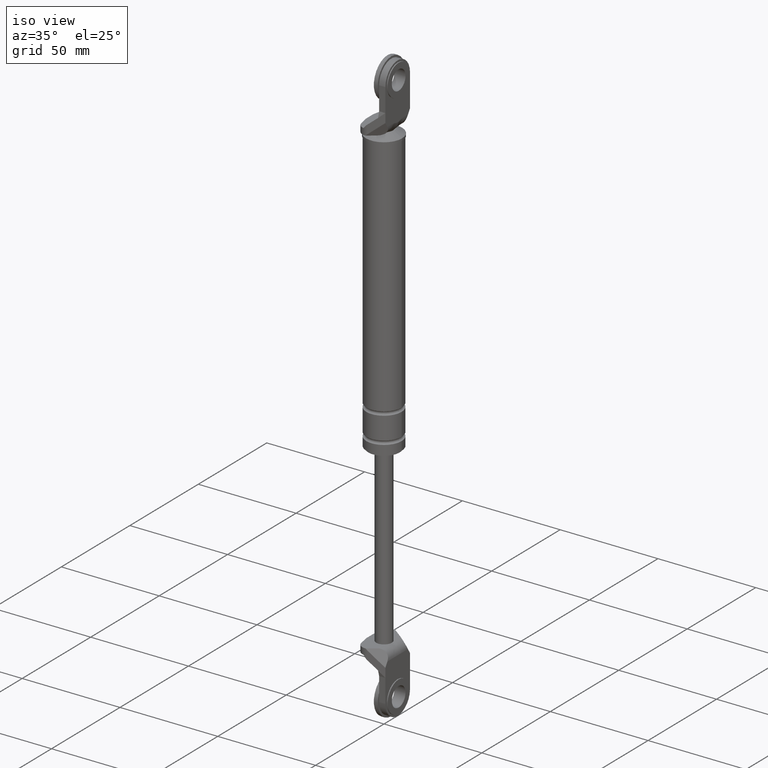
[diagram: clean part render]
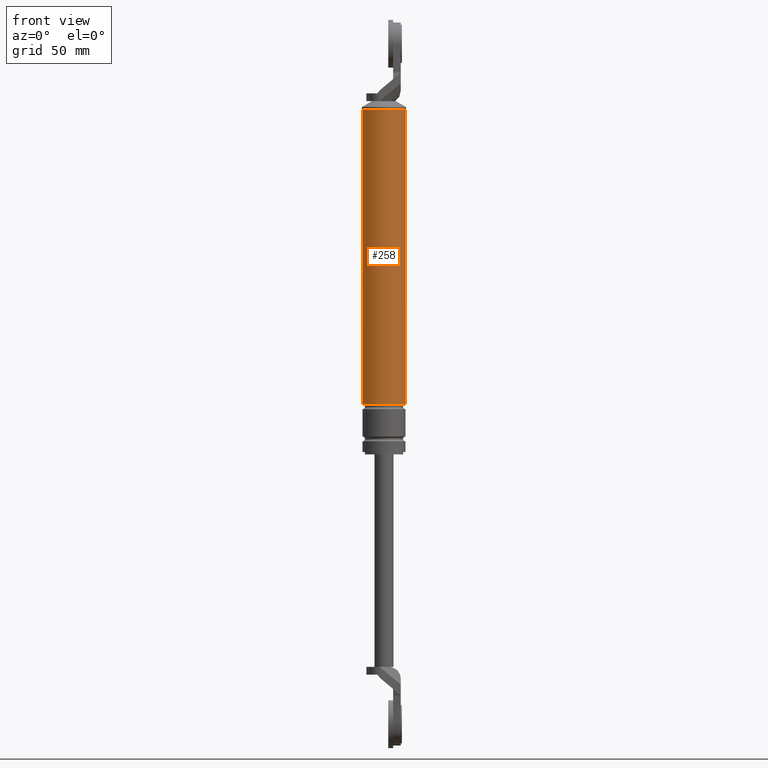
[diagram: tour spotlight — one face highlighted and labeled with its STEP entity id]
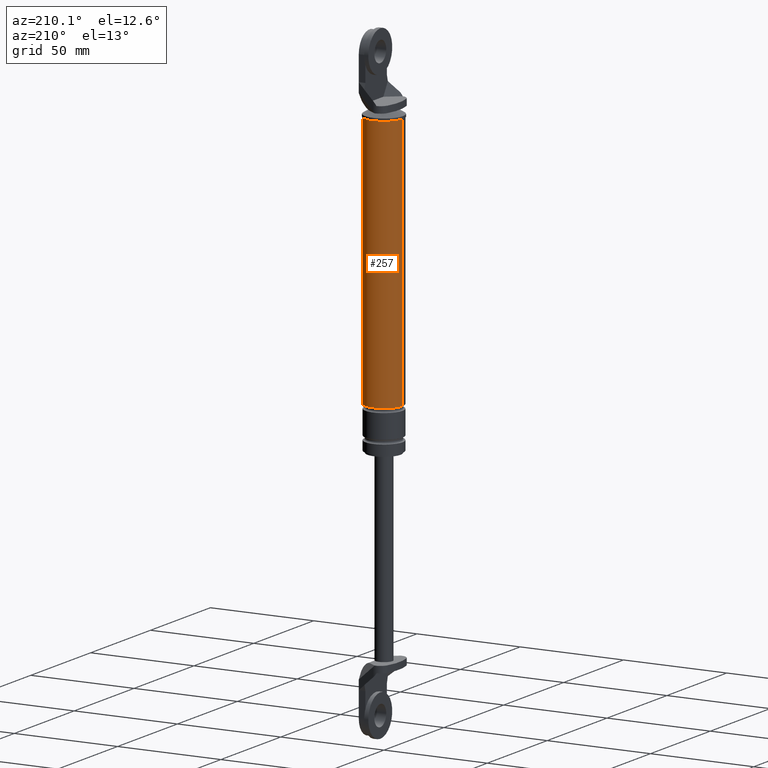
[diagram: tour spotlight — one face highlighted and labeled with its STEP entity id]
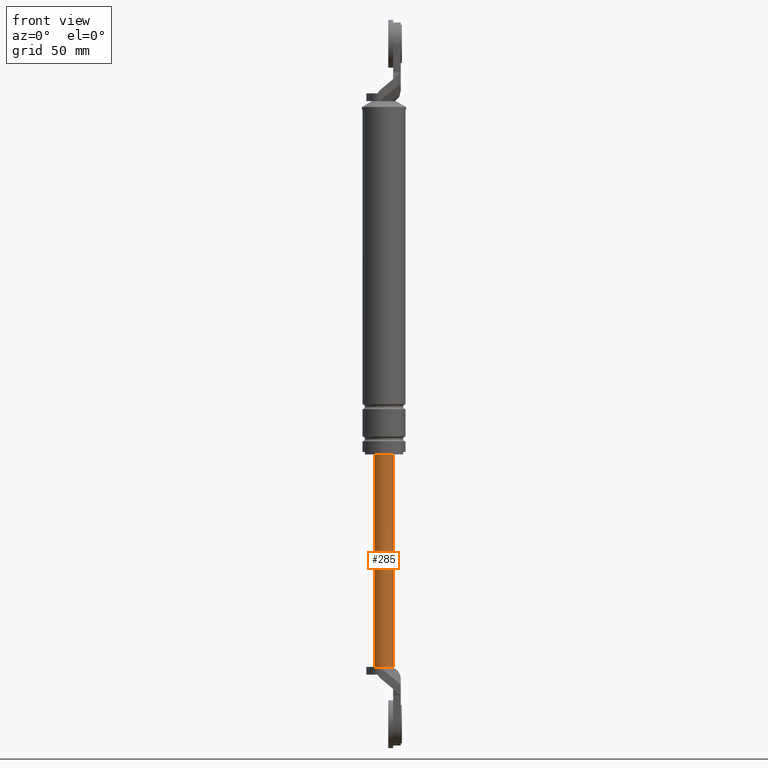
[diagram: tour spotlight — one face highlighted and labeled with its STEP entity id]
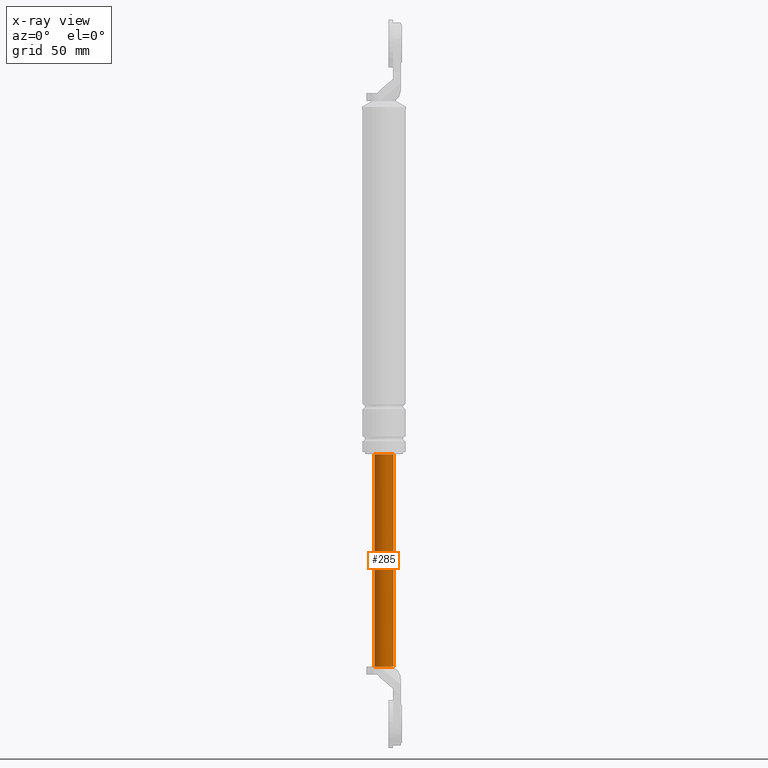
[diagram: x-ray of the same camera — body ghosted, this tour face saturated]
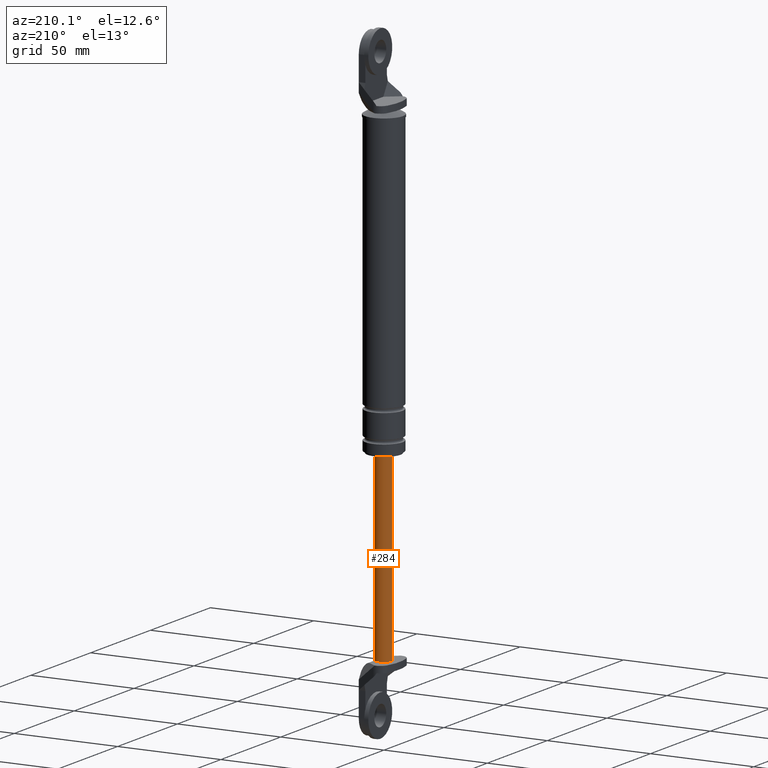
[diagram: tour spotlight — one face highlighted and labeled with its STEP entity id]
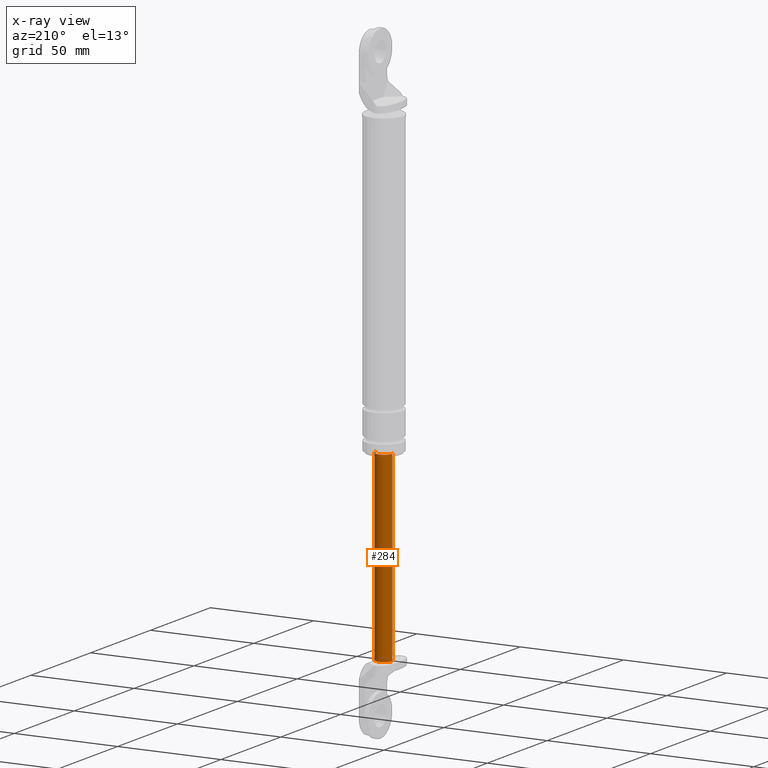
[diagram: x-ray of the same camera — body ghosted, this tour face saturated]
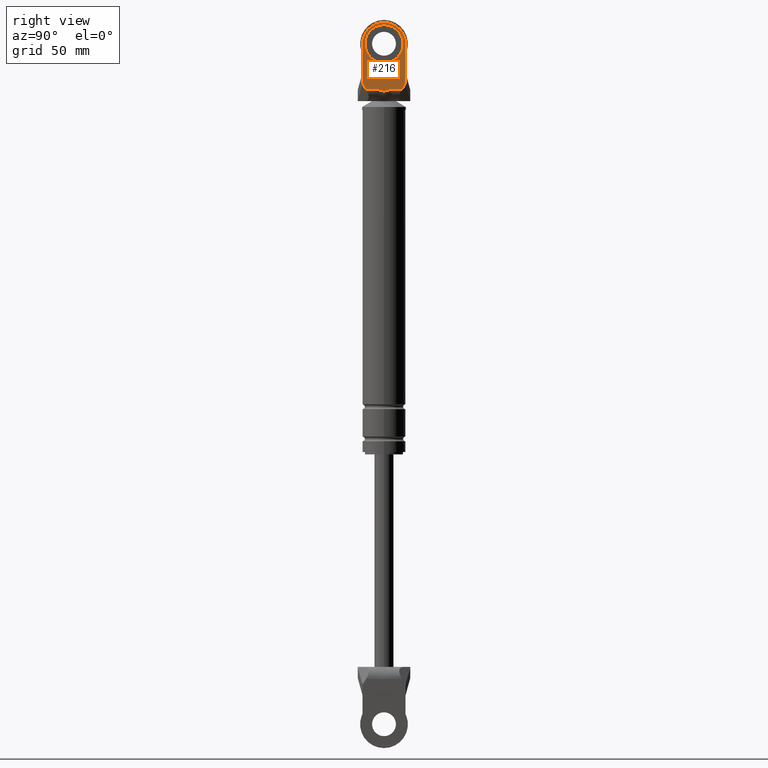
[diagram: tour spotlight — one face highlighted and labeled with its STEP entity id]
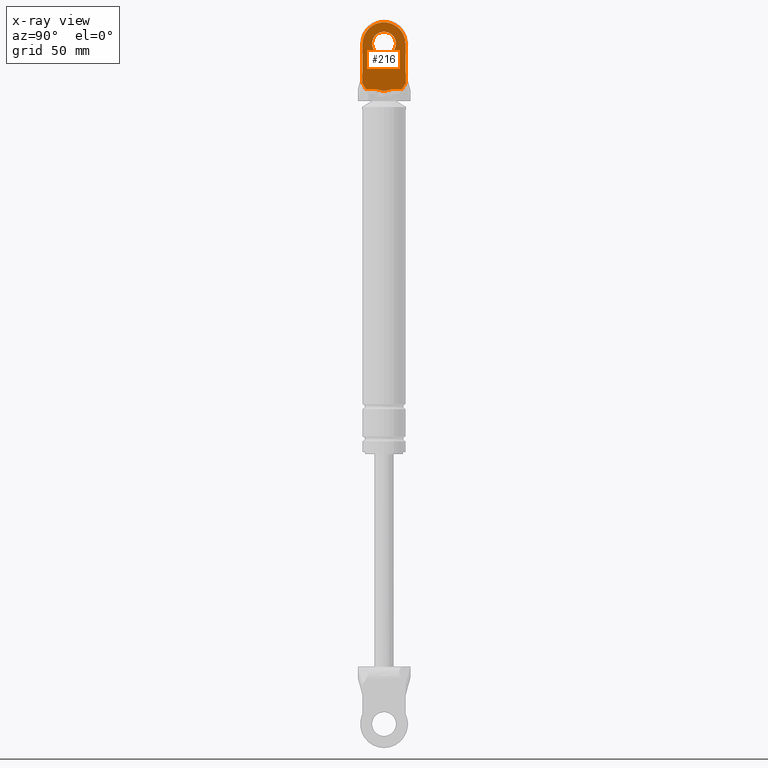
[diagram: x-ray of the same camera — body ghosted, this tour face saturated]
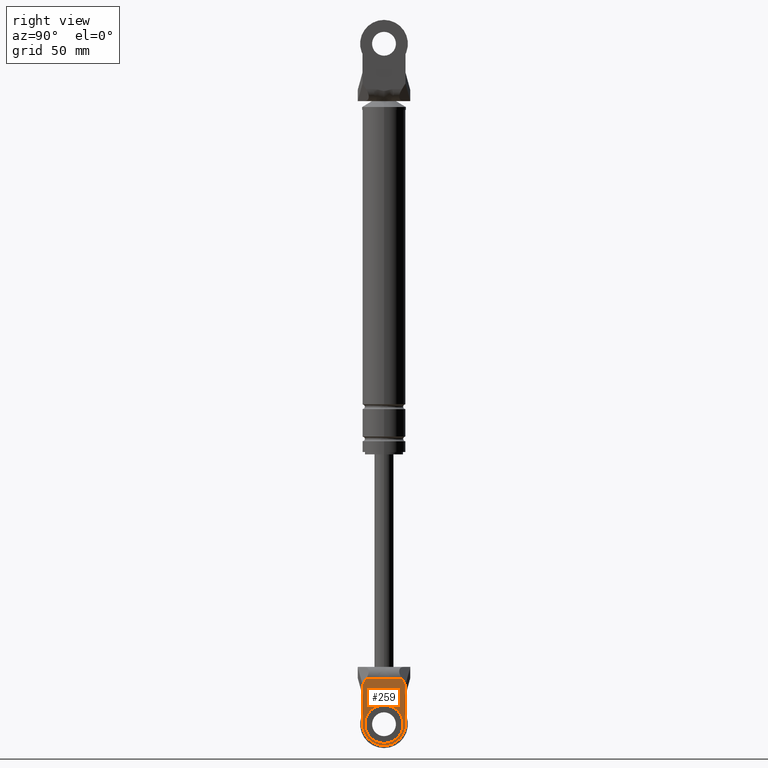
[diagram: tour spotlight — one face highlighted and labeled with its STEP entity id]
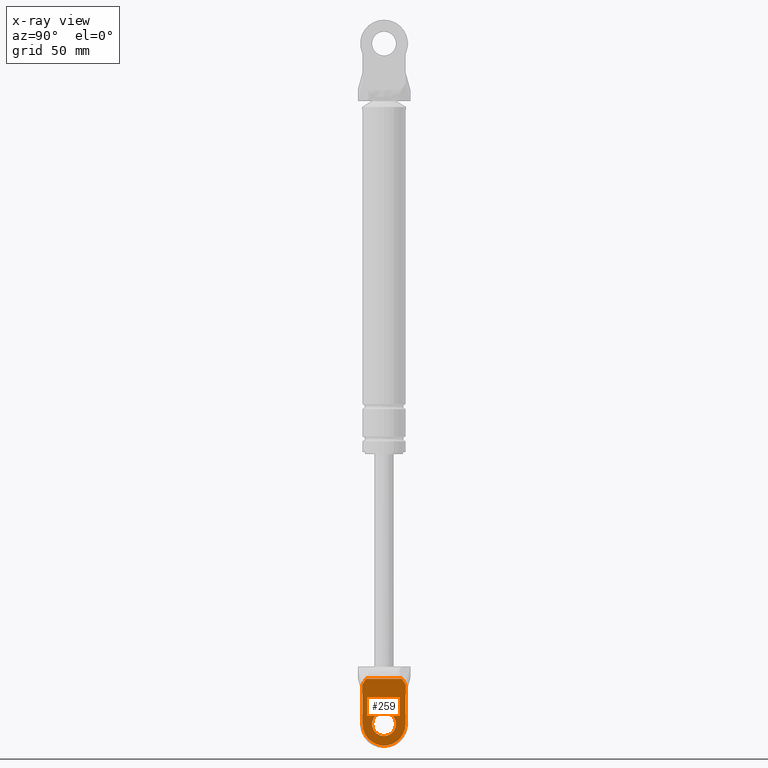
[diagram: x-ray of the same camera — body ghosted, this tour face saturated]
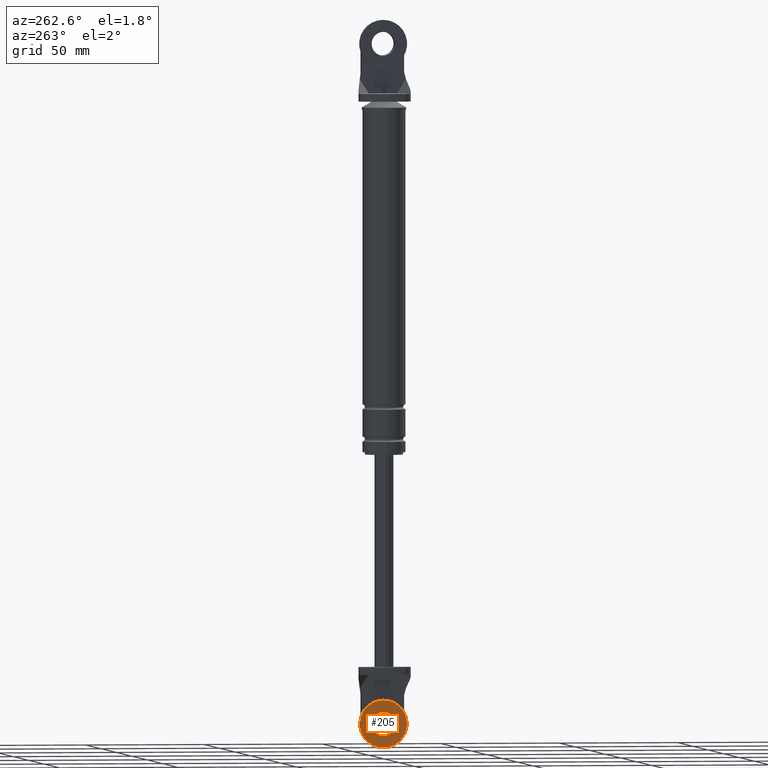
[diagram: tour spotlight — one face highlighted and labeled with its STEP entity id]
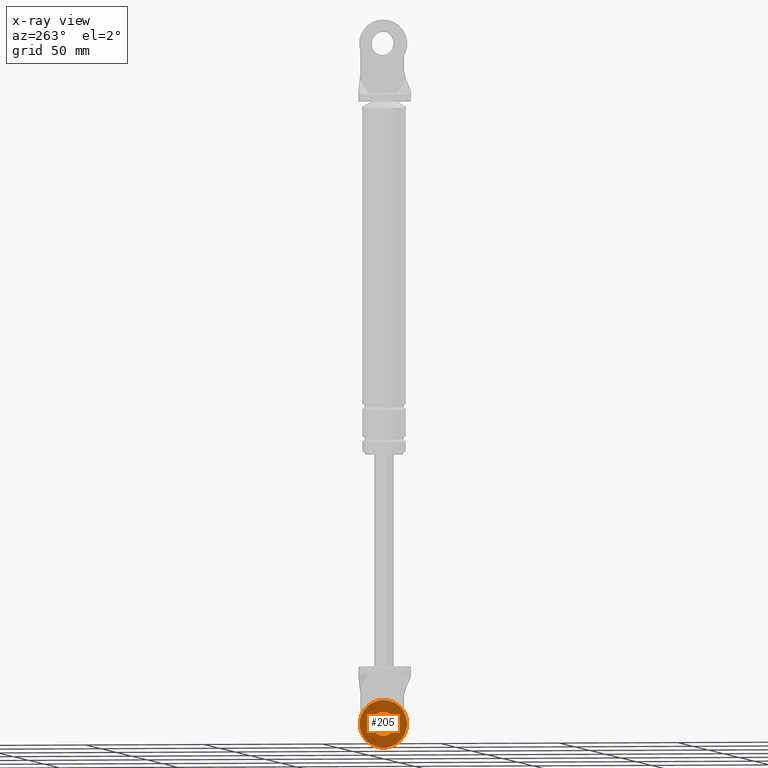
[diagram: x-ray of the same camera — body ghosted, this tour face saturated]
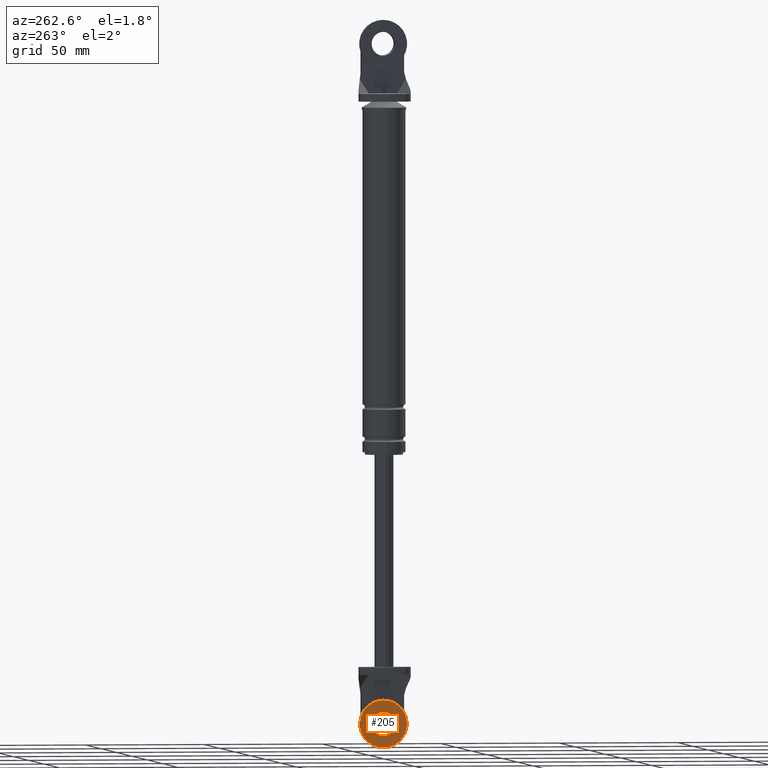
[diagram: tour spotlight — one face highlighted and labeled with its STEP entity id]
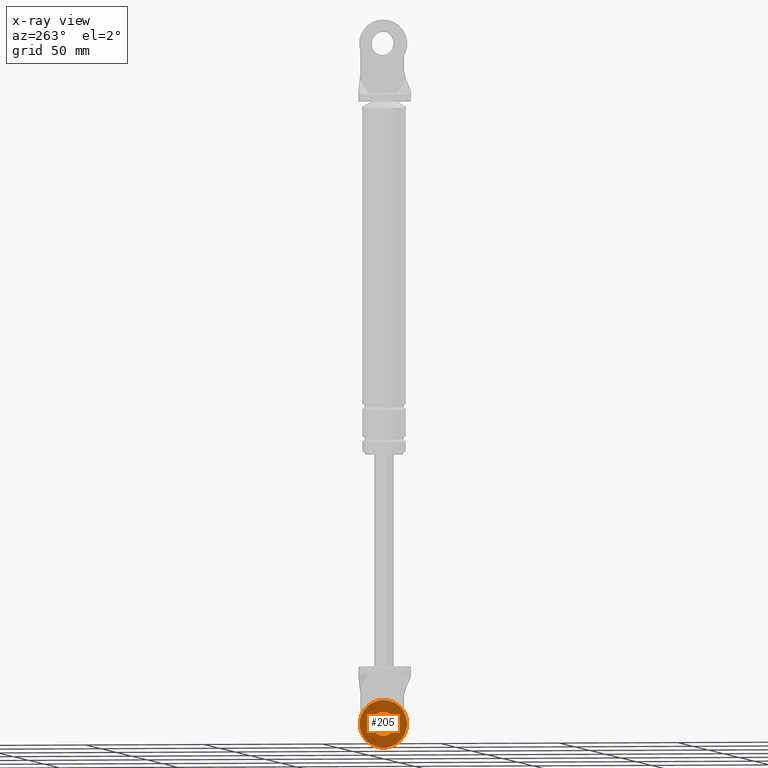
[diagram: x-ray of the same camera — body ghosted, this tour face saturated]
A machine part: a face-by-face anatomy tour. The part has 94 B-rep faces; the first image is the clean iso view, then the 8 largest visible faces are spotlighted one at a time (largest first), each with its STEP entity span.

Face 1 — front view, entity #258. In plain terms, the highlighted cylindrical surface (edge-blend (fillet) strip) has radius 9 mm, axis along (0, 0, 1).
Definition (entity closure, byte-faithful):
#258=ADVANCED_FACE('',(#835),#834,.T.);
#834=CYLINDRICAL_SURFACE('',#1573,9.00000000000E+000);
#835=FACE_OUTER_BOUND('',#1574,.T.);
#1570=CARTESIAN_POINT('',(0.00000000000E+000,3.58204186421E-014,0.00000000000E+000));
#1571=DIRECTION('',(-0.00000000000E+000,-0.00000000000E+000,1.00000000000E+000));
#1572=DIRECTION('',(1.00000000000E+000,0.00000000000E+000,0.00000000000E+000));
#1573=AXIS2_PLACEMENT_3D('',#1570,#1571,#1572);
#1574=EDGE_LOOP('',(#2012,#2013,#2014,#2015));
#2012=ORIENTED_EDGE('',*,*,#2267,.F.);
#2013=ORIENTED_EDGE('',*,*,#2283,.T.);
#2014=ORIENTED_EDGE('',*,*,#2215,.T.);
#2015=ORIENTED_EDGE('',*,*,#2284,.F.);
#2215=EDGE_CURVE('',#2743,#2744,#2745,.T.);
#2267=EDGE_CURVE('',#3086,#3087,#3088,.T.);
#2283=EDGE_CURVE('',#3086,#2743,#3186,.T.);
#2284=EDGE_CURVE('',#3087,#2744,#3192,.T.);
#2743=VERTEX_POINT('',#3920);
#2744=VERTEX_POINT('',#3921);
#2745=CIRCLE('',#3925,9.00000000000E+000);
#3086=VERTEX_POINT('',#4127);
#3087=VERTEX_POINT('',#4128);
#3088=CIRCLE('',#4132,9.00000000000E+000);
#3186=(BOUNDED_CURVE() B_SPLINE_CURVE(1,(#4183,#4184),.UNSPECIFIED.,.F.,.F.) B_SPLINE_CURVE_WITH_KNOTS((2,2),(6.97836706411E-002,9.30216329116E-001),.UNSPECIFIED.) CURVE() GEOMETRIC_REPRESENTATION_ITEM() RATIONAL_B_SPLINE_CURVE((1.00000000000E+000,1.00000000000E+000)) REPRESENTATION_ITEM('') );
#3192=(BOUNDED_CURVE() B_SPLINE_CURVE(1,(#4185,#4186),.UNSPECIFIED.,.F.,.F.) B_SPLINE_CURVE_WITH_KNOTS((2,2),(6.97836706211E-002,9.30216329379E-001),.UNSPECIFIED.) CURVE() GEOMETRIC_REPRESENTATION_ITEM() RATIONAL_B_SPLINE_CURVE((7.50000000000E-001,7.50000000000E-001)) REPRESENTATION_ITEM('') );
#3920=CARTESIAN_POINT('',(9.00000000000E+000,3.61192557345E-014,8.52999850000E+001));
#3921=CARTESIAN_POINT('',(-9.00000000000E+000,3.58204186421E-014,8.52999850000E+001));
#3922=CARTESIAN_POINT('',(0.00000000000E+000,3.58204186421E-014,8.52999850000E+001));
#3923=DIRECTION('',(-0.00000000000E+000,0.00000000000E+000,-1.00000000000E+000));
#3924=DIRECTION('',(-1.00000000000E+000,-1.22460635382E-016,0.00000000000E+000));
#3925=AXIS2_PLACEMENT_3D('',#3922,#3923,#3924);
#4127=CARTESIAN_POINT('',(9.00000000000E+000,3.61192557345E-014,-3.80000150000E+001));
#4128=CARTESIAN_POINT('',(-9.00000000000E+000,3.58204186421E-014,-3.80000150000E+001));
#4129=CARTESIAN_POINT('',(0.00000000000E+000,3.58204186421E-014,-3.80000150000E+001));
#4130=DIRECTION('',(-0.00000000000E+000,0.00000000000E+000,-1.00000000000E+000));
#4131=DIRECTION('',(-1.00000000000E+000,-1.22460635382E-016,0.00000000000E+000));
#4132=AXIS2_PLACEMENT_3D('',#4129,#4130,#4131);
#4183=CARTESIAN_POINT('',(9.00000000000E+000,3.58204186421E-014,-3.80000149971E+001));
#4184=CARTESIAN_POINT('',(9.00000000000E+000,3.58204186421E-014,8.52999849623E+001));
#4185=CARTESIAN_POINT('',(-9.00000000000E+000,3.52310773148E-014,-3.80000150000E+001));
#4186=CARTESIAN_POINT('',(-9.00000000000E+000,3.52310773148E-014,8.52999850000E+001));

Face 2 — auxiliary view, entity #257. In plain terms, the highlighted cylindrical surface (edge-blend (fillet) strip) has radius 9 mm, axis along (0, 0, 1).
Definition (entity closure, byte-faithful):
#257=ADVANCED_FACE('',(#825),#824,.T.);
#824=CYLINDRICAL_SURFACE('',#1568,9.00000000000E+000);
#825=FACE_OUTER_BOUND('',#1569,.T.);
#1565=CARTESIAN_POINT('',(0.00000000000E+000,3.58204186421E-014,0.00000000000E+000));
#1566=DIRECTION('',(-0.00000000000E+000,-0.00000000000E+000,1.00000000000E+000));
#1567=DIRECTION('',(1.00000000000E+000,0.00000000000E+000,0.00000000000E+000));
#1568=AXIS2_PLACEMENT_3D('',#1565,#1566,#1567);
#1569=EDGE_LOOP('',(#2008,#2009,#2010,#2011));
#2008=ORIENTED_EDGE('',*,*,#2216,.T.);
#2009=ORIENTED_EDGE('',*,*,#2283,.F.);
#2010=ORIENTED_EDGE('',*,*,#2270,.F.);
#2011=ORIENTED_EDGE('',*,*,#2284,.T.);
#2216=EDGE_CURVE('',#2744,#2743,#2751,.T.);
#2270=EDGE_CURVE('',#3087,#3086,#3106,.T.);
#2283=EDGE_CURVE('',#3086,#2743,#3186,.T.);
#2284=EDGE_CURVE('',#3087,#2744,#3192,.T.);
#2743=VERTEX_POINT('',#3920);
#2744=VERTEX_POINT('',#3921);
#2751=CIRCLE('',#3929,9.00000000000E+000);
#3086=VERTEX_POINT('',#4127);
#3087=VERTEX_POINT('',#4128);
#3106=CIRCLE('',#4146,9.00000000000E+000);
#3186=(BOUNDED_CURVE() B_SPLINE_CURVE(1,(#4183,#4184),.UNSPECIFIED.,.F.,.F.) B_SPLINE_CURVE_WITH_KNOTS((2,2),(6.97836706411E-002,9.30216329116E-001),.UNSPECIFIED.) CURVE() GEOMETRIC_REPRESENTATION_ITEM() RATIONAL_B_SPLINE_CURVE((1.00000000000E+000,1.00000000000E+000)) REPRESENTATION_ITEM('') );
#3192=(BOUNDED_CURVE() B_SPLINE_CURVE(1,(#4185,#4186),.UNSPECIFIED.,.F.,.F.) B_SPLINE_CURVE_WITH_KNOTS((2,2),(6.97836706211E-002,9.30216329379E-001),.UNSPECIFIED.) CURVE() GEOMETRIC_REPRESENTATION_ITEM() RATIONAL_B_SPLINE_CURVE((7.50000000000E-001,7.50000000000E-001)) REPRESENTATION_ITEM('') );
#3920=CARTESIAN_POINT('',(9.00000000000E+000,3.61192557345E-014,8.52999850000E+001));
#3921=CARTESIAN_POINT('',(-9.00000000000E+000,3.58204186421E-014,8.52999850000E+001));
#3926=CARTESIAN_POINT('',(0.00000000000E+000,3.58204186421E-014,8.52999850000E+001));
#3927=DIRECTION('',(-0.00000000000E+000,0.00000000000E+000,-1.00000000000E+000));
#3928=DIRECTION('',(-1.00000000000E+000,-1.22460635382E-016,0.00000000000E+000));
#3929=AXIS2_PLACEMENT_3D('',#3926,#3927,#3928);
#4127=CARTESIAN_POINT('',(9.00000000000E+000,3.61192557345E-014,-3.80000150000E+001));
#4128=CARTESIAN_POINT('',(-9.00000000000E+000,3.58204186421E-014,-3.80000150000E+001));
#4143=CARTESIAN_POINT('',(0.00000000000E+000,3.58204186421E-014,-3.80000150000E+001));
#4144=DIRECTION('',(-0.00000000000E+000,0.00000000000E+000,-1.00000000000E+000));
#4145=DIRECTION('',(-1.00000000000E+000,-1.22460635382E-016,0.00000000000E+000));
#4146=AXIS2_PLACEMENT_3D('',#4143,#4144,#4145);
#4183=CARTESIAN_POINT('',(9.00000000000E+000,3.58204186421E-014,-3.80000149971E+001));
#4184=CARTESIAN_POINT('',(9.00000000000E+000,3.58204186421E-014,8.52999849623E+001));
#4185=CARTESIAN_POINT('',(-9.00000000000E+000,3.52310773148E-014,-3.80000150000E+001));
#4186=CARTESIAN_POINT('',(-9.00000000000E+000,3.52310773148E-014,8.52999850000E+001));

Face 3 — front view, entity #285. An x-ray twin of the same camera follows (body ghosted, this face saturated) — the face is partly hidden behind the body. In plain terms, the highlighted cylindrical surface (edge-blend (fillet) strip) has radius 4 mm, axis along (0, 0, 1).
Definition (entity closure, byte-faithful):
#285=ADVANCED_FACE('',(#1107),#1106,.T.);
#1106=CYLINDRICAL_SURFACE('',#1760,4.00000000000E+000);
#1107=FACE_OUTER_BOUND('',#1761,.T.);
#1757=CARTESIAN_POINT('',(0.00000000000E+000,3.58204186421E-014,0.00000000000E+000));
#1758=DIRECTION('',(-0.00000000000E+000,-0.00000000000E+000,1.00000000000E+000));
#1759=DIRECTION('',(1.00000000000E+000,-0.00000000000E+000,-0.00000000000E+000));
#1760=AXIS2_PLACEMENT_3D('',#1757,#1758,#1759);
#1761=EDGE_LOOP('',(#2153,#2154,#2155,#2156,#2157));
#2153=ORIENTED_EDGE('',*,*,#2350,.F.);
#2154=ORIENTED_EDGE('',*,*,#2341,.F.);
#2155=ORIENTED_EDGE('',*,*,#2354,.T.);
#2156=ORIENTED_EDGE('',*,*,#2338,.F.);
#2157=ORIENTED_EDGE('',*,*,#2355,.F.);
#2338=EDGE_CURVE('',#3550,#3549,#3557,.T.);
#2341=EDGE_CURVE('',#3570,#3563,#3577,.T.);
#2350=EDGE_CURVE('',#3563,#3633,#3634,.T.);
#2354=EDGE_CURVE('',#3570,#3549,#3658,.T.);
#2355=EDGE_CURVE('',#3633,#3550,#3664,.T.);
#3549=VERTEX_POINT('',#4397);
#3550=VERTEX_POINT('',#4398);
#3557=CIRCLE('',#4406,4.00000000000E+000);
#3563=VERTEX_POINT('',#4407);
#3570=VERTEX_POINT('',#4411);
#3577=CIRCLE('',#4419,4.00000000000E+000);
#3633=VERTEX_POINT('',#4449);
#3634=CIRCLE('',#4453,4.00000000000E+000);
#3658=(BOUNDED_CURVE() B_SPLINE_CURVE(1,(#4462,#4463),.UNSPECIFIED.,.F.,.F.) B_SPLINE_CURVE_WITH_KNOTS((2,2),(8.33333332085E-002,9.16666666563E-001),.UNSPECIFIED.) CURVE() GEOMETRIC_REPRESENTATION_ITEM() RATIONAL_B_SPLINE_CURVE((1.00000000000E+000,1.00000000000E+000)) REPRESENTATION_ITEM('') );
#3664=(BOUNDED_CURVE() B_SPLINE_CURVE(1,(#4464,#4465),.UNSPECIFIED.,.F.,.F.) B_SPLINE_CURVE_WITH_KNOTS((2,2),(8.33333333333E-002,9.16666666667E-001),.UNSPECIFIED.) CURVE() GEOMETRIC_REPRESENTATION_ITEM() RATIONAL_B_SPLINE_CURVE((7.50000000000E-001,7.50000000000E-001)) REPRESENTATION_ITEM('') );
#4397=CARTESIAN_POINT('',(4.00000000000E+000,3.58204186421E-014,-5.90000150000E+001));
#4398=CARTESIAN_POINT('',(-4.00000000000E+000,3.64153152077E-014,-5.90000150000E+001));
#4403=CARTESIAN_POINT('',(0.00000000000E+000,3.58204186421E-014,-5.90000150000E+001));
#4404=DIRECTION('',(0.00000000000E+000,0.00000000000E+000,1.00000000000E+000));
#4405=DIRECTION('',(1.00000000000E+000,-1.22460635382E-016,0.00000000000E+000));
#4406=AXIS2_PLACEMENT_3D('',#4403,#4404,#4405);
#4407=CARTESIAN_POINT('',(2.00000000000E+000,-3.46410161514E+000,-1.48000015000E+002));
#4411=CARTESIAN_POINT('',(4.00000000000E+000,3.65633449443E-014,-1.48000015000E+002));
#4416=CARTESIAN_POINT('',(0.00000000000E+000,3.58204186421E-014,-1.48000015000E+002));
#4417=DIRECTION('',(0.00000000000E+000,0.00000000000E+000,-1.00000000000E+000));
#4418=DIRECTION('',(5.00000000000E-001,8.66025403784E-001,0.00000000000E+000));
#4419=AXIS2_PLACEMENT_3D('',#4416,#4417,#4418);
#4449=CARTESIAN_POINT('',(-4.00000000000E+000,5.70813781209E-014,-1.48000015000E+002));
#4450=CARTESIAN_POINT('',(0.00000000000E+000,3.58204186421E-014,-1.48000015000E+002));
#4451=DIRECTION('',(0.00000000000E+000,0.00000000000E+000,-1.00000000000E+000));
#4452=DIRECTION('',(1.00000000000E+000,-0.00000000000E+000,-0.00000000000E+000));
#4453=AXIS2_PLACEMENT_3D('',#4450,#4451,#4452);
#4462=CARTESIAN_POINT('',(4.00000000000E+000,3.58204186421E-014,-1.48000015013E+002));
#4463=CARTESIAN_POINT('',(4.00000000000E+000,3.58204186421E-014,-5.90000150111E+001));
#4464=CARTESIAN_POINT('',(-4.00000000000E+000,3.58231962612E-014,-1.48000015000E+002));
#4465=CARTESIAN_POINT('',(-4.00000000000E+000,3.58231962612E-014,-5.90000150000E+001));

Face 4 — auxiliary view, entity #284. An x-ray twin of the same camera follows (body ghosted, this face saturated) — the face is partly hidden behind the body. In plain terms, the highlighted cylindrical surface (edge-blend (fillet) strip) has radius 4 mm, axis along (0, 0, 1).
Definition (entity closure, byte-faithful):
#284=ADVANCED_FACE('',(#1097),#1096,.T.);
#1096=CYLINDRICAL_SURFACE('',#1755,4.00000000000E+000);
#1097=FACE_OUTER_BOUND('',#1756,.T.);
#1752=CARTESIAN_POINT('',(0.00000000000E+000,3.58204186421E-014,0.00000000000E+000));
#1753=DIRECTION('',(-0.00000000000E+000,-0.00000000000E+000,1.00000000000E+000));
#1754=DIRECTION('',(1.00000000000E+000,-0.00000000000E+000,-0.00000000000E+000));
#1755=AXIS2_PLACEMENT_3D('',#1752,#1753,#1754);
#1756=EDGE_LOOP('',(#2148,#2149,#2150,#2151,#2152));
#2148=ORIENTED_EDGE('',*,*,#2337,.F.);
#2149=ORIENTED_EDGE('',*,*,#2354,.F.);
#2150=ORIENTED_EDGE('',*,*,#2340,.F.);
#2151=ORIENTED_EDGE('',*,*,#2351,.F.);
#2152=ORIENTED_EDGE('',*,*,#2355,.T.);
#2337=EDGE_CURVE('',#3549,#3550,#3551,.T.);
#2340=EDGE_CURVE('',#3309,#3570,#3571,.T.);
#2351=EDGE_CURVE('',#3633,#3309,#3640,.T.);
#2354=EDGE_CURVE('',#3570,#3549,#3658,.T.);
#2355=EDGE_CURVE('',#3633,#3550,#3664,.T.);
#3309=VERTEX_POINT('',#4259);
#3549=VERTEX_POINT('',#4397);
#3550=VERTEX_POINT('',#4398);
#3551=CIRCLE('',#4402,4.00000000000E+000);
#3570=VERTEX_POINT('',#4411);
#3571=CIRCLE('',#4415,4.00000000000E+000);
#3633=VERTEX_POINT('',#4449);
#3640=CIRCLE('',#4457,4.00000000000E+000);
#3658=(BOUNDED_CURVE() B_SPLINE_CURVE(1,(#4462,#4463),.UNSPECIFIED.,.F.,.F.) B_SPLINE_CURVE_WITH_KNOTS((2,2),(8.33333332085E-002,9.16666666563E-001),.UNSPECIFIED.) CURVE() GEOMETRIC_REPRESENTATION_ITEM() RATIONAL_B_SPLINE_CURVE((1.00000000000E+000,1.00000000000E+000)) REPRESENTATION_ITEM('') );
#3664=(BOUNDED_CURVE() B_SPLINE_CURVE(1,(#4464,#4465),.UNSPECIFIED.,.F.,.F.) B_SPLINE_CURVE_WITH_KNOTS((2,2),(8.33333333333E-002,9.16666666667E-001),.UNSPECIFIED.) CURVE() GEOMETRIC_REPRESENTATION_ITEM() RATIONAL_B_SPLINE_CURVE((7.50000000000E-001,7.50000000000E-001)) REPRESENTATION_ITEM('') );
#4259=CARTESIAN_POINT('',(2.00000000000E+000,3.46410161514E+000,-1.48000015000E+002));
#4397=CARTESIAN_POINT('',(4.00000000000E+000,3.58204186421E-014,-5.90000150000E+001));
#4398=CARTESIAN_POINT('',(-4.00000000000E+000,3.64153152077E-014,-5.90000150000E+001));
#4399=CARTESIAN_POINT('',(0.00000000000E+000,3.58204186421E-014,-5.90000150000E+001));
#4400=DIRECTION('',(0.00000000000E+000,0.00000000000E+000,1.00000000000E+000));
#4401=DIRECTION('',(1.00000000000E+000,-1.22460635382E-016,0.00000000000E+000));
#4402=AXIS2_PLACEMENT_3D('',#4399,#4400,#4401);
#4411=CARTESIAN_POINT('',(4.00000000000E+000,3.65633449443E-014,-1.48000015000E+002));
#4412=CARTESIAN_POINT('',(0.00000000000E+000,3.58204186421E-014,-1.48000015000E+002));
#4413=DIRECTION('',(0.00000000000E+000,0.00000000000E+000,-1.00000000000E+000));
#4414=DIRECTION('',(5.00000000000E-001,8.66025403784E-001,0.00000000000E+000));
#4415=AXIS2_PLACEMENT_3D('',#4412,#4413,#4414);
#4449=CARTESIAN_POINT('',(-4.00000000000E+000,5.70813781209E-014,-1.48000015000E+002));
#4454=CARTESIAN_POINT('',(0.00000000000E+000,3.58204186421E-014,-1.48000015000E+002));
#4455=DIRECTION('',(0.00000000000E+000,0.00000000000E+000,-1.00000000000E+000));
#4456=DIRECTION('',(1.00000000000E+000,-0.00000000000E+000,-0.00000000000E+000));
#4457=AXIS2_PLACEMENT_3D('',#4454,#4455,#4456);
#4462=CARTESIAN_POINT('',(4.00000000000E+000,3.58204186421E-014,-1.48000015013E+002));
#4463=CARTESIAN_POINT('',(4.00000000000E+000,3.58204186421E-014,-5.90000150111E+001));
#4464=CARTESIAN_POINT('',(-4.00000000000E+000,3.58231962612E-014,-1.48000015000E+002));
#4465=CARTESIAN_POINT('',(-4.00000000000E+000,3.58231962612E-014,-5.90000150000E+001));

Face 5 — right view, entity #216. An x-ray twin of the same camera follows (body ghosted, this face saturated) — the face is partly hidden behind the body. In plain terms, the highlighted planar face has unit normal (1, 0, 0).
Definition (entity closure, byte-faithful):
#216=ADVANCED_FACE('',(#411,#412),#410,.T.);
#410=PLANE('',#1183);
#411=FACE_OUTER_BOUND('',#1184,.T.);
#412=FACE_BOUND('',#1185,.T.);
#1180=CARTESIAN_POINT('',(7.00000000000E+000,1.08000000785E+001,9.03623767282E+001));
#1181=DIRECTION('',(1.00000000000E+000,0.00000000000E+000,-0.00000000000E+000));
#1182=DIRECTION('',(0.00000000000E+000,1.22460635382E-016,1.00000000000E+000));
#1183=AXIS2_PLACEMENT_3D('',#1180,#1181,#1182);
#1184=EDGE_LOOP('',(#1810,#1811,#1812,#1813,#1814,#1815,#1816,#1817,#1818,#1819));
#1185=EDGE_LOOP('',(#1820,#1821));
#1810=ORIENTED_EDGE('',*,*,#2182,.T.);
#1811=ORIENTED_EDGE('',*,*,#2183,.T.);
#1812=ORIENTED_EDGE('',*,*,#2184,.T.);
#1813=ORIENTED_EDGE('',*,*,#2185,.T.);
#1814=ORIENTED_EDGE('',*,*,#2186,.T.);
#1815=ORIENTED_EDGE('',*,*,#2187,.F.);
#1816=ORIENTED_EDGE('',*,*,#2188,.T.);
#1817=ORIENTED_EDGE('',*,*,#2189,.F.);
#1818=ORIENTED_EDGE('',*,*,#2190,.T.);
#1819=ORIENTED_EDGE('',*,*,#2191,.T.);
#1820=ORIENTED_EDGE('',*,*,#2192,.T.);
#1821=ORIENTED_EDGE('',*,*,#2193,.T.);
#2182=EDGE_CURVE('',#2516,#2517,#2518,.T.);
#2183=EDGE_CURVE('',#2517,#2524,#2525,.T.);
#2184=EDGE_CURVE('',#2524,#2531,#2532,.T.);
#2185=EDGE_CURVE('',#2531,#2538,#2539,.T.);
#2186=EDGE_CURVE('',#2538,#2545,#2546,.T.);
#2187=EDGE_CURVE('',#2552,#2545,#2553,.T.);
#2188=EDGE_CURVE('',#2552,#2559,#2560,.T.);
#2189=EDGE_CURVE('',#2566,#2559,#2567,.T.);
#2190=EDGE_CURVE('',#2566,#2573,#2574,.T.);
#2191=EDGE_CURVE('',#2573,#2516,#2580,.T.);
#2192=EDGE_CURVE('',#2586,#2587,#2588,.T.);
#2193=EDGE_CURVE('',#2587,#2586,#2594,.T.);
#2516=VERTEX_POINT('',#3766);
#2517=VERTEX_POINT('',#3767);
#2518=LINE('',#3768,#3769);
#2524=VERTEX_POINT('',#3771);
#2525=LINE('',#3772,#3773);
#2531=VERTEX_POINT('',#3775);
#2532=(BOUNDED_CURVE() B_SPLINE_CURVE(3,(#3776,#3777,#3778,#3779,#3780,#3781,#3782,#3783,#3784,#3785,#3786,#3787,#3788,#3789,#3790,#3791,#3792,#3793),.UNSPECIFIED.,.F.,.F.) B_SPLINE_CURVE_WITH_KNOTS((4,2,2,2,2,2,2,2,4),(0.00000000000E+000,1.06854947845E-003,2.13709895690E-003,3.20564843535E-003,4.27419791380E-003,5.34274739225E-003,6.41129687069E-003,7.47984634914E-003,8.54839582759E-003),.UNSPECIFIED.) CURVE() GEOMETRIC_REPRESENTATION_ITEM() RATIONAL_B_SPLINE_CURVE((1.00000000000E+000,1.00000000000E+000,1.00000000000E+000,1.00000000000E+000,1.00000000000E+000,1.00000000000E+000,1.00000000000E+000,1.00000000000E+000,1.00000000000E+000,1.00000000000E+000,1.00000000000E+000,1.00000000000E+000,1.00000000000E+000,1.00000000000E+000,1.00000000000E+000,1.00000000000E+000,1.00000000000E+000,1.00000000000E+000)) REPRESENTATION_ITEM('') );
#2538=VERTEX_POINT('',#3794);
#2539=LINE('',#3795,#3796);
#2545=VERTEX_POINT('',#3798);
#2546=LINE('',#3799,#3800);
#2552=VERTEX_POINT('',#3802);
#2553=LINE('',#3803,#3804);
#2559=VERTEX_POINT('',#3806);
#2560=LINE('',#3807,#3808);
#2566=VERTEX_POINT('',#3810);
#2567=CIRCLE('',#3814,9.00000000000E+000);
#2573=VERTEX_POINT('',#3815);
#2574=LINE('',#3816,#3817);
#2580=LINE('',#3819,#3820);
#2586=VERTEX_POINT('',#3822);
#2587=VERTEX_POINT('',#3823);
#2588=CIRCLE('',#3827,5.00000000000E+000);
#2594=CIRCLE('',#3831,5.00000000000E+000);
#3766=CARTESIAN_POINT('',(7.00000000000E+000,-9.00000000000E+000,9.63794956183E+001));
#3767=CARTESIAN_POINT('',(7.00000000000E+000,-7.51280740496E+000,9.39999850000E+001));
#3768=CARTESIAN_POINT('',(7.00000000000E+000,-9.00000000000E+000,9.63794956183E+001));
#3769=VECTOR('',#3770,2.80603146760E+000);
#3770=DIRECTION('',(0.00000000000E+000,5.29998544994E-001,-8.47998550886E-001));
#3771=CARTESIAN_POINT('',(7.00000000000E+000,-4.19794107278E+000,9.39999850000E+001));
#3772=CARTESIAN_POINT('',(7.00000000000E+000,-7.51280740496E+000,9.39999850000E+001));
#3773=VECTOR('',#3774,3.31486633219E+000);
#3774=DIRECTION('',(0.00000000000E+000,1.00000000000E+000,0.00000000000E+000));
#3775=CARTESIAN_POINT('',(7.00000000000E+000,4.19794107278E+000,9.39999850000E+001));
#3776=CARTESIAN_POINT('',(7.00000000000E+000,-4.19794107278E+000,9.39999850000E+001));
#3777=CARTESIAN_POINT('',(7.00000000000E+000,-3.83668867664E+000,9.39999850000E+001));
#3778=CARTESIAN_POINT('',(7.00000000000E+000,-3.48084742448E+000,9.39680255174E+001));
#3779=CARTESIAN_POINT('',(7.00000000000E+000,-2.77747191810E+000,9.38550434783E+001));
#3780=CARTESIAN_POINT('',(7.00000000000E+000,-2.43004895945E+000,9.37733635842E+001));
#3781=CARTESIAN_POINT('',(7.00000000000E+000,-1.73930455721E+000,9.35857792882E+001));
#3782=CARTESIAN_POINT('',(7.00000000000E+000,-1.39633116709E+000,9.34788034011E+001));
#3783=CARTESIAN_POINT('',(7.00000000000E+000,-7.02882341013E-001,9.33033126541E+001));
#3784=CARTESIAN_POINT('',(7.00000000000E+000,-3.50170672612E-001,9.32385229705E+001));
#3785=CARTESIAN_POINT('',(7.00000000000E+000,3.75945783394E-001,9.32414472218E+001));
#3786=CARTESIAN_POINT('',(7.00000000000E+000,7.25000323177E-001,9.33080943097E+001));
#3787=CARTESIAN_POINT('',(7.00000000000E+000,1.41392909206E+000,9.34841213850E+001));
#3788=CARTESIAN_POINT('',(7.00000000000E+000,1.75451243077E+000,9.35902005791E+001));
#3789=CARTESIAN_POINT('',(7.00000000000E+000,2.44131589628E+000,9.37761206067E+001));
#3790=CARTESIAN_POINT('',(7.00000000000E+000,2.78721992144E+000,9.38569752041E+001));
#3791=CARTESIAN_POINT('',(7.00000000000E+000,3.48676651954E+000,9.39686020866E+001));
#3792=CARTESIAN_POINT('',(7.00000000000E+000,3.84186402612E+000,9.39999850000E+001));
#3793=CARTESIAN_POINT('',(7.00000000000E+000,4.19794107278E+000,9.39999850000E+001));
#3794=CARTESIAN_POINT('',(7.00000000000E+000,7.51280740496E+000,9.39999850000E+001));
#3795=CARTESIAN_POINT('',(7.00000000000E+000,4.19794107278E+000,9.39999850000E+001));
#3796=VECTOR('',#3797,3.31486633219E+000);
#3797=DIRECTION('',(0.00000000000E+000,1.00000000000E+000,0.00000000000E+000));
#3798=CARTESIAN_POINT('',(7.00000000000E+000,9.00000000000E+000,9.63794956183E+001));
#3799=CARTESIAN_POINT('',(7.00000000000E+000,7.51280740496E+000,9.39999850000E+001));
#3800=VECTOR('',#3801,2.80603146760E+000);
#3801=DIRECTION('',(0.00000000000E+000,5.29998544994E-001,8.47998550886E-001));
#3802=CARTESIAN_POINT('',(7.00000000000E+000,9.00000000000E+000,1.00999985000E+002));
#3803=CARTESIAN_POINT('',(7.00000000000E+000,9.00000000000E+000,1.00999985000E+002));
#3804=VECTOR('',#3805,4.62048938173E+000);
#3805=DIRECTION('',(0.00000000000E+000,0.00000000000E+000,-1.00000000000E+000));
#3806=CARTESIAN_POINT('',(7.00000000000E+000,9.00000000000E+000,1.12999985000E+002));
#3807=CARTESIAN_POINT('',(7.00000000000E+000,9.00000000000E+000,1.00999985000E+002));
#3808=VECTOR('',#3809,1.20000000000E+001);
#3809=DIRECTION('',(0.00000000000E+000,1.48029736617E-016,1.00000000000E+000));
#3810=CARTESIAN_POINT('',(7.00000000000E+000,-9.00000000000E+000,1.12999984215E+002));
#3811=CARTESIAN_POINT('',(7.00000000000E+000,1.50626581520E-014,1.12999985000E+002));
#3812=DIRECTION('',(-1.00000000000E+000,0.00000000000E+000,0.00000000000E+000));
#3813=DIRECTION('',(-0.00000000000E+000,-1.22460635382E-016,-1.00000000000E+000));
#3814=AXIS2_PLACEMENT_3D('',#3811,#3812,#3813);
#3815=CARTESIAN_POINT('',(7.00000000000E+000,-9.00000000000E+000,1.00999985000E+002));
#3816=CARTESIAN_POINT('',(7.00000000000E+000,-9.00000000000E+000,1.12999984215E+002));
#3817=VECTOR('',#3818,1.19999992146E+001);
#3818=DIRECTION('',(0.00000000000E+000,-1.48029746305E-016,-1.00000000000E+000));
#3819=CARTESIAN_POINT('',(7.00000000000E+000,-9.00000000000E+000,1.00999985000E+002));
#3820=VECTOR('',#3821,4.62048938173E+000);
#3821=DIRECTION('',(0.00000000000E+000,0.00000000000E+000,-1.00000000000E+000));
#3822=CARTESIAN_POINT('',(7.00000000000E+000,1.56749613289E-014,1.17999985000E+002));
#3823=CARTESIAN_POINT('',(7.00000000000E+000,1.48029736617E-014,1.07999985000E+002));
#3824=CARTESIAN_POINT('',(7.00000000000E+000,1.50626581520E-014,1.12999985000E+002));
#3825=DIRECTION('',(-1.00000000000E+000,0.00000000000E+000,0.00000000000E+000));
#3826=DIRECTION('',(0.00000000000E+000,-1.47911419729E-031,1.00000000000E+000));
#3827=AXIS2_PLACEMENT_3D('',#3824,#3825,#3826);
#3828=CARTESIAN_POINT('',(7.00000000000E+000,1.50626581520E-014,1.12999985000E+002));
#3829=DIRECTION('',(-1.00000000000E+000,0.00000000000E+000,0.00000000000E+000));
#3830=DIRECTION('',(0.00000000000E+000,-1.47911419729E-031,1.00000000000E+000));
#3831=AXIS2_PLACEMENT_3D('',#3828,#3829,#3830);

Face 6 — right view, entity #259. An x-ray twin of the same camera follows (body ghosted, this face saturated) — the face is partly hidden behind the body. In plain terms, the highlighted planar face has unit normal (1, 0, 0).
Definition (entity closure, byte-faithful):
#259=ADVANCED_FACE('',(#845,#846),#844,.T.);
#844=PLANE('',#1578);
#845=FACE_OUTER_BOUND('',#1579,.T.);
#846=FACE_BOUND('',#1580,.T.);
#1575=CARTESIAN_POINT('',(7.00000000000E+000,-1.08000008639E+001,-1.50088870872E+002));
#1576=DIRECTION('',(1.00000000000E+000,0.00000000000E+000,0.00000000000E+000));
#1577=DIRECTION('',(0.00000000000E+000,0.00000000000E+000,-1.00000000000E+000));
#1578=AXIS2_PLACEMENT_3D('',#1575,#1576,#1577);
#1579=EDGE_LOOP('',(#2016,#2017,#2018,#2019,#2020,#2021,#2022,#2023,#2024,#2025));
#1580=EDGE_LOOP('',(#2026,#2027));
#2016=ORIENTED_EDGE('',*,*,#2285,.T.);
#2017=ORIENTED_EDGE('',*,*,#2286,.T.);
#2018=ORIENTED_EDGE('',*,*,#2287,.T.);
#2019=ORIENTED_EDGE('',*,*,#2288,.T.);
#2020=ORIENTED_EDGE('',*,*,#2289,.T.);
#2021=ORIENTED_EDGE('',*,*,#2290,.F.);
#2022=ORIENTED_EDGE('',*,*,#2291,.F.);
#2023=ORIENTED_EDGE('',*,*,#2292,.T.);
#2024=ORIENTED_EDGE('',*,*,#2293,.F.);
#2025=ORIENTED_EDGE('',*,*,#2294,.T.);
#2026=ORIENTED_EDGE('',*,*,#2295,.F.);
#2027=ORIENTED_EDGE('',*,*,#2296,.F.);
#2285=EDGE_CURVE('',#3198,#3199,#3200,.T.);
#2286=EDGE_CURVE('',#3199,#3206,#3207,.T.);
#2287=EDGE_CURVE('',#3206,#3213,#3214,.T.);
#2288=EDGE_CURVE('',#3213,#3220,#3221,.T.);
#2289=EDGE_CURVE('',#3220,#3227,#3228,.T.);
#2290=EDGE_CURVE('',#3234,#3227,#3235,.T.);
#2291=EDGE_CURVE('',#3241,#3234,#3242,.T.);
#2292=EDGE_CURVE('',#3241,#3248,#3249,.T.);
#2293=EDGE_CURVE('',#3255,#3248,#3256,.T.);
#2294=EDGE_CURVE('',#3255,#3198,#3262,.T.);
#2295=EDGE_CURVE('',#3268,#3269,#3270,.T.);
#2296=EDGE_CURVE('',#3269,#3268,#3276,.T.);
#3198=VERTEX_POINT('',#4187);
#3199=VERTEX_POINT('',#4188);
#3200=LINE('',#4189,#4190);
#3206=VERTEX_POINT('',#4192);
#3207=LINE('',#4193,#4194);
#3213=VERTEX_POINT('',#4196);
#3214=(BOUNDED_CURVE() B_SPLINE_CURVE(3,(#4197,#4198,#4199,#4200,#4201,#4202),.UNSPECIFIED.,.F.,.F.) B_SPLINE_CURVE_WITH_KNOTS((4,2,4),(0.00000000000E+000,2.23783750894E-003,4.47567501788E-003),.UNSPECIFIED.) CURVE() GEOMETRIC_REPRESENTATION_ITEM() RATIONAL_B_SPLINE_CURVE((1.00000000000E+000,1.00000000000E+000,1.00000000000E+000,1.00000000000E+000,1.00000000000E+000,1.00000000000E+000)) REPRESENTATION_ITEM('') );
#3220=VERTEX_POINT('',#4203);
#3221=LINE('',#4204,#4205);
#3227=VERTEX_POINT('',#4207);
#3228=LINE('',#4208,#4209);
#3234=VERTEX_POINT('',#4211);
#3235=LINE('',#4212,#4213);
#3241=VERTEX_POINT('',#4215);
#3242=LINE('',#4216,#4217);
#3248=VERTEX_POINT('',#4219);
#3249=CIRCLE('',#4223,9.00000000000E+000);
#3255=VERTEX_POINT('',#4224);
#3256=LINE('',#4225,#4226);
#3262=LINE('',#4228,#4229);
#3268=VERTEX_POINT('',#4231);
#3269=VERTEX_POINT('',#4232);
#3270=CIRCLE('',#4236,5.00000000000E+000);
#3276=CIRCLE('',#4240,5.00000000000E+000);
#4187=CARTESIAN_POINT('',(7.00000000000E+000,9.00000000000E+000,-1.55379525618E+002));
#4188=CARTESIAN_POINT('',(7.00000000000E+000,7.51280740496E+000,-1.53000015000E+002));
#4189=CARTESIAN_POINT('',(7.00000000000E+000,9.00000000000E+000,-1.55379525618E+002));
#4190=VECTOR('',#4191,2.80603146760E+000);
#4191=DIRECTION('',(0.00000000000E+000,-5.29998544994E-001,8.47998550886E-001));
#4192=CARTESIAN_POINT('',(7.00000000000E+000,2.23606797750E+000,-1.53000015000E+002));
#4193=CARTESIAN_POINT('',(7.00000000000E+000,7.51280740496E+000,-1.53000015000E+002));
#4194=VECTOR('',#4195,5.27673942746E+000);
#4195=DIRECTION('',(0.00000000000E+000,-1.00000000000E+000,0.00000000000E+000));
#4196=CARTESIAN_POINT('',(7.00000000000E+000,-2.23606797750E+000,-1.53000015000E+002));
#4197=CARTESIAN_POINT('',(7.00000000000E+000,2.23606797750E+000,-1.53000015000E+002));
#4198=CARTESIAN_POINT('',(7.00000000000E+000,1.48981762792E+000,-1.53000015000E+002));
#4199=CARTESIAN_POINT('',(7.00000000000E+000,7.45452759221E-001,-1.52899014059E+002));
#4200=CARTESIAN_POINT('',(7.00000000000E+000,-7.44938146996E-001,-1.52898974919E+002));
#4201=CARTESIAN_POINT('',(7.00000000000E+000,-1.48943110925E+000,-1.53000015000E+002));
#4202=CARTESIAN_POINT('',(7.00000000000E+000,-2.23606797750E+000,-1.53000015000E+002));
#4203=CARTESIAN_POINT('',(7.00000000000E+000,-7.51280740496E+000,-1.53000015000E+002));
#4204=CARTESIAN_POINT('',(7.00000000000E+000,-2.23606797750E+000,-1.53000015000E+002));
#4205=VECTOR('',#4206,5.27673942746E+000);
#4206=DIRECTION('',(0.00000000000E+000,-1.00000000000E+000,0.00000000000E+000));
#4207=CARTESIAN_POINT('',(7.00000000000E+000,-9.00000000000E+000,-1.55379525618E+002));
#4208=CARTESIAN_POINT('',(7.00000000000E+000,-7.51280740496E+000,-1.53000015000E+002));
#4209=VECTOR('',#4210,2.80603146760E+000);
#4210=DIRECTION('',(0.00000000000E+000,-5.29998544994E-001,-8.47998550886E-001));
#4211=CARTESIAN_POINT('',(7.00000000000E+000,-9.00000000000E+000,-1.60000015000E+002));
#4212=CARTESIAN_POINT('',(7.00000000000E+000,-9.00000000000E+000,-1.60000015000E+002));
#4213=VECTOR('',#4214,4.62048938173E+000);
#4214=DIRECTION('',(0.00000000000E+000,0.00000000000E+000,1.00000000000E+000));
#4215=CARTESIAN_POINT('',(7.00000000000E+000,-9.00000000000E+000,-1.72000014215E+002));
#4216=CARTESIAN_POINT('',(7.00000000000E+000,-9.00000000000E+000,-1.72000014215E+002));
#4217=VECTOR('',#4218,1.19999992146E+001);
#4218=DIRECTION('',(0.00000000000E+000,0.00000000000E+000,1.00000000000E+000));
#4219=CARTESIAN_POINT('',(7.00000000000E+000,9.00000000000E+000,-1.72000015000E+002));
#4220=CARTESIAN_POINT('',(7.00000000000E+000,3.58204186421E-014,-1.72000015000E+002));
#4221=DIRECTION('',(1.00000000000E+000,0.00000000000E+000,0.00000000000E+000));
#4222=DIRECTION('',(-0.00000000000E+000,-0.00000000000E+000,1.00000000000E+000));
#4223=AXIS2_PLACEMENT_3D('',#4220,#4221,#4222);
#4224=CARTESIAN_POINT('',(7.00000000000E+000,9.00000000000E+000,-1.60000015000E+002));
#4225=CARTESIAN_POINT('',(7.00000000000E+000,9.00000000000E+000,-1.60000015000E+002));
#4226=VECTOR('',#4227,1.20000000000E+001);
#4227=DIRECTION('',(0.00000000000E+000,0.00000000000E+000,-1.00000000000E+000));
#4228=CARTESIAN_POINT('',(7.00000000000E+000,9.00000000000E+000,-1.60000015000E+002));
#4229=VECTOR('',#4230,4.62048938173E+000);
#4230=DIRECTION('',(0.00000000000E+000,0.00000000000E+000,1.00000000000E+000));
#4231=CARTESIAN_POINT('',(7.00000000000E+000,3.58231962612E-014,-1.67000015000E+002));
#4232=CARTESIAN_POINT('',(7.00000000000E+000,3.58204186421E-014,-1.77000015000E+002));
#4233=CARTESIAN_POINT('',(7.00000000000E+000,3.58204186421E-014,-1.72000015000E+002));
#4234=DIRECTION('',(1.00000000000E+000,0.00000000000E+000,0.00000000000E+000));
#4235=DIRECTION('',(0.00000000000E+000,-1.22460635382E-016,-1.00000000000E+000));
#4236=AXIS2_PLACEMENT_3D('',#4233,#4234,#4235);
#4237=CARTESIAN_POINT('',(7.00000000000E+000,3.58204186421E-014,-1.72000015000E+002));
#4238=DIRECTION('',(1.00000000000E+000,0.00000000000E+000,0.00000000000E+000));
#4239=DIRECTION('',(0.00000000000E+000,-1.22460635382E-016,-1.00000000000E+000));
#4240=AXIS2_PLACEMENT_3D('',#4237,#4238,#4239);

Face 7 — auxiliary view, entity #205. An x-ray twin of the same camera follows (body ghosted, this face saturated) — the face is partly hidden behind the body. In plain terms, the highlighted planar face has unit normal (1, 0, 0).
Definition (entity closure, byte-faithful):
#205=ADVANCED_FACE('',(#298,#299),#297,.F.);
#297=PLANE('',#1125);
#298=FACE_OUTER_BOUND('',#1126,.T.);
#299=FACE_BOUND('',#1127,.T.);
#1122=CARTESIAN_POINT('',(-6.90000460000E+001,2.07846096908E+001,2.76000000000E+002));
#1123=DIRECTION('',(1.00000000000E+000,0.00000000000E+000,0.00000000000E+000));
#1124=DIRECTION('',(0.00000000000E+000,-1.00000000000E+000,0.00000000000E+000));
#1125=AXIS2_PLACEMENT_3D('',#1122,#1123,#1124);
#1126=EDGE_LOOP('',(#1766,#1767));
#1127=EDGE_LOOP('',(#1768,#1769));
#1766=ORIENTED_EDGE('',*,*,#2162,.T.);
#1767=ORIENTED_EDGE('',*,*,#2163,.T.);
#1768=ORIENTED_EDGE('',*,*,#2164,.F.);
#1769=ORIENTED_EDGE('',*,*,#2165,.F.);
#2162=EDGE_CURVE('',#2384,#2385,#2386,.T.);
#2163=EDGE_CURVE('',#2385,#2384,#2392,.T.);
#2164=EDGE_CURVE('',#2398,#2399,#2400,.T.);
#2165=EDGE_CURVE('',#2399,#2398,#2406,.T.);
#2384=VERTEX_POINT('',#3690);
#2385=VERTEX_POINT('',#3691);
#2386=CIRCLE('',#3695,1.00000000000E+001);
#2392=CIRCLE('',#3699,1.00000000000E+001);
#2398=VERTEX_POINT('',#3700);
#2399=VERTEX_POINT('',#3701);
#2400=CIRCLE('',#3705,5.00000000000E+000);
#2406=CIRCLE('',#3709,5.00000000000E+000);
#3690=CARTESIAN_POINT('',(-6.90000460000E+001,5.68434188608E-014,2.43000000000E+002));
#3691=CARTESIAN_POINT('',(-6.90000460000E+001,5.80276567537E-014,2.63000000000E+002));
#3692=CARTESIAN_POINT('',(-6.90000460000E+001,5.68434188608E-014,2.53000000000E+002));
#3693=DIRECTION('',(-1.00000000000E+000,0.00000000000E+000,-0.00000000000E+000));
#3694=DIRECTION('',(0.00000000000E+000,-1.22460635382E-016,-1.00000000000E+000));
#3695=AXIS2_PLACEMENT_3D('',#3692,#3693,#3694);
#3696=CARTESIAN_POINT('',(-6.90000460000E+001,5.68434188608E-014,2.53000000000E+002));
#3697=DIRECTION('',(-1.00000000000E+000,0.00000000000E+000,-0.00000000000E+000));
#3698=DIRECTION('',(0.00000000000E+000,-1.22460635382E-016,-1.00000000000E+000));
#3699=AXIS2_PLACEMENT_3D('',#3696,#3697,#3698);
#3700=CARTESIAN_POINT('',(-6.90000460000E+001,5.74355378073E-014,2.58000000000E+002));
#3701=CARTESIAN_POINT('',(-6.90000460000E+001,5.68434188608E-014,2.48000000000E+002));
#3702=CARTESIAN_POINT('',(-6.90000460000E+001,5.68434188608E-014,2.53000000000E+002));
#3703=DIRECTION('',(-1.00000000000E+000,0.00000000000E+000,-0.00000000000E+000));
#3704=DIRECTION('',(0.00000000000E+000,-1.22460635382E-016,-1.00000000000E+000));
#3705=AXIS2_PLACEMENT_3D('',#3702,#3703,#3704);
#3706=CARTESIAN_POINT('',(-6.90000460000E+001,5.68434188608E-014,2.53000000000E+002));
#3707=DIRECTION('',(-1.00000000000E+000,0.00000000000E+000,-0.00000000000E+000));
#3708=DIRECTION('',(0.00000000000E+000,-1.22460635382E-016,-1.00000000000E+000));
#3709=AXIS2_PLACEMENT_3D('',#3706,#3707,#3708);

Face 8 — auxiliary view, entity #205. An x-ray twin of the same camera follows (body ghosted, this face saturated) — the face is partly hidden behind the body. In plain terms, the highlighted planar face has unit normal (1, 0, 0).
Definition (entity closure, byte-faithful):
#205=ADVANCED_FACE('',(#298,#299),#297,.F.);
#297=PLANE('',#1125);
#298=FACE_OUTER_BOUND('',#1126,.T.);
#299=FACE_BOUND('',#1127,.T.);
#1122=CARTESIAN_POINT('',(-6.90000460000E+001,2.07846096908E+001,2.76000000000E+002));
#1123=DIRECTION('',(1.00000000000E+000,0.00000000000E+000,0.00000000000E+000));
#1124=DIRECTION('',(0.00000000000E+000,-1.00000000000E+000,0.00000000000E+000));
#1125=AXIS2_PLACEMENT_3D('',#1122,#1123,#1124);
#1126=EDGE_LOOP('',(#1766,#1767));
#1127=EDGE_LOOP('',(#1768,#1769));
#1766=ORIENTED_EDGE('',*,*,#2162,.T.);
#1767=ORIENTED_EDGE('',*,*,#2163,.T.);
#1768=ORIENTED_EDGE('',*,*,#2164,.F.);
#1769=ORIENTED_EDGE('',*,*,#2165,.F.);
#2162=EDGE_CURVE('',#2384,#2385,#2386,.T.);
#2163=EDGE_CURVE('',#2385,#2384,#2392,.T.);
#2164=EDGE_CURVE('',#2398,#2399,#2400,.T.);
#2165=EDGE_CURVE('',#2399,#2398,#2406,.T.);
#2384=VERTEX_POINT('',#3690);
#2385=VERTEX_POINT('',#3691);
#2386=CIRCLE('',#3695,1.00000000000E+001);
#2392=CIRCLE('',#3699,1.00000000000E+001);
#2398=VERTEX_POINT('',#3700);
#2399=VERTEX_POINT('',#3701);
#2400=CIRCLE('',#3705,5.00000000000E+000);
#2406=CIRCLE('',#3709,5.00000000000E+000);
#3690=CARTESIAN_POINT('',(-6.90000460000E+001,5.68434188608E-014,2.43000000000E+002));
#3691=CARTESIAN_POINT('',(-6.90000460000E+001,5.80276567537E-014,2.63000000000E+002));
#3692=CARTESIAN_POINT('',(-6.90000460000E+001,5.68434188608E-014,2.53000000000E+002));
#3693=DIRECTION('',(-1.00000000000E+000,0.00000000000E+000,-0.00000000000E+000));
#3694=DIRECTION('',(0.00000000000E+000,-1.22460635382E-016,-1.00000000000E+000));
#3695=AXIS2_PLACEMENT_3D('',#3692,#3693,#3694);
#3696=CARTESIAN_POINT('',(-6.90000460000E+001,5.68434188608E-014,2.53000000000E+002));
#3697=DIRECTION('',(-1.00000000000E+000,0.00000000000E+000,-0.00000000000E+000));
#3698=DIRECTION('',(0.00000000000E+000,-1.22460635382E-016,-1.00000000000E+000));
#3699=AXIS2_PLACEMENT_3D('',#3696,#3697,#3698);
#3700=CARTESIAN_POINT('',(-6.90000460000E+001,5.74355378073E-014,2.58000000000E+002));
#3701=CARTESIAN_POINT('',(-6.90000460000E+001,5.68434188608E-014,2.48000000000E+002));
#3702=CARTESIAN_POINT('',(-6.90000460000E+001,5.68434188608E-014,2.53000000000E+002));
#3703=DIRECTION('',(-1.00000000000E+000,0.00000000000E+000,-0.00000000000E+000));
#3704=DIRECTION('',(0.00000000000E+000,-1.22460635382E-016,-1.00000000000E+000));
#3705=AXIS2_PLACEMENT_3D('',#3702,#3703,#3704);
#3706=CARTESIAN_POINT('',(-6.90000460000E+001,5.68434188608E-014,2.53000000000E+002));
#3707=DIRECTION('',(-1.00000000000E+000,0.00000000000E+000,-0.00000000000E+000));
#3708=DIRECTION('',(0.00000000000E+000,-1.22460635382E-016,-1.00000000000E+000));
#3709=AXIS2_PLACEMENT_3D('',#3706,#3707,#3708);